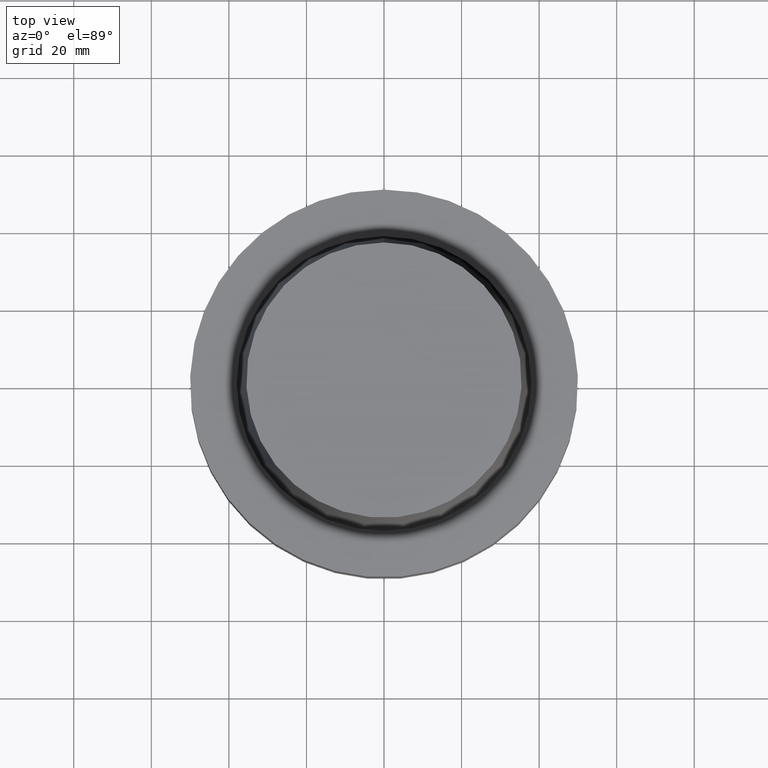
[diagram: clean part render]
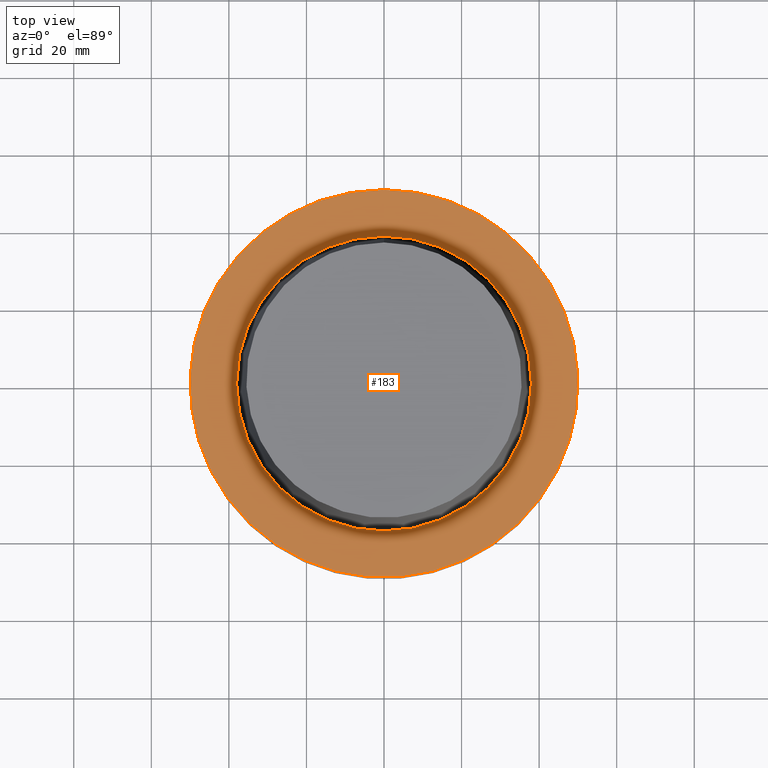
[diagram: same view with one face highlighted and labeled with its STEP entity id]
A machine part, top view. The second image highlights one B-rep face of the part: STEP entity #183.
In plain terms, the highlighted planar face has unit normal (-0, -0, 1).
Its self-contained STEP definition (entity closure, byte-faithful):
#102=EDGE_CURVE('Unnamed[1]',#254,#254,#255,.T.);
#113=EDGE_CURVE('Unnamed[1]',#269,#269,#270,.T.);
#183=ADVANCED_FACE('Unnamed[1]',(#376,#377),#378,.T.);
#254=VERTEX_POINT('',#463);
#255=CIRCLE('',#464,50.0);
#269=VERTEX_POINT('',#482);
#270=CIRCLE('',#483,37.9999999999349);
#376=FACE_OUTER_BOUND('',#615,.T.);
#377=FACE_BOUND('',#616,.T.);
#378=PLANE('',#617);
#463=CARTESIAN_POINT('',(-1.81547968506605E-031,50.0,-9.76766004263236E-016));
#464=AXIS2_PLACEMENT_3D('',#690,#691,#692);
#482=CARTESIAN_POINT('',(-3.3636548776863E-032,37.9999999999349,-2.44634216324803E-015));
#483=AXIS2_PLACEMENT_3D('',#703,#704,#705);
#615=EDGE_LOOP('',(#822));
#616=EDGE_LOOP('',(#823));
#617=AXIS2_PLACEMENT_3D('',#824,#825,#826);
#690=CARTESIAN_POINT('',(0.0,0.0,0.0));
#691=DIRECTION('',(6.12323399573677E-017,1.22464679914735E-016,-1.0));
#692=DIRECTION('',(-1.23259516440783E-032,1.0,1.22464679914735E-016));
#703=CARTESIAN_POINT('',(0.0,0.0,0.0));
#704=DIRECTION('',(6.12323399573677E-017,1.22464679914735E-016,-1.0));
#705=DIRECTION('',(-1.23259516440783E-032,1.0,1.22464679914735E-016));
#822=ORIENTED_EDGE('',*,*,#102,.F.);
#823=ORIENTED_EDGE('',*,*,#113,.T.);
#824=CARTESIAN_POINT('',(-1.07592258641734E-031,43.9999999999675,-1.71155408375563E-015));
#825=DIRECTION('',(-6.12323399573677E-017,-1.22464679914735E-016,1.0));
#826=DIRECTION('',(1.23259516440783E-032,-1.0,-1.22464679914735E-016));